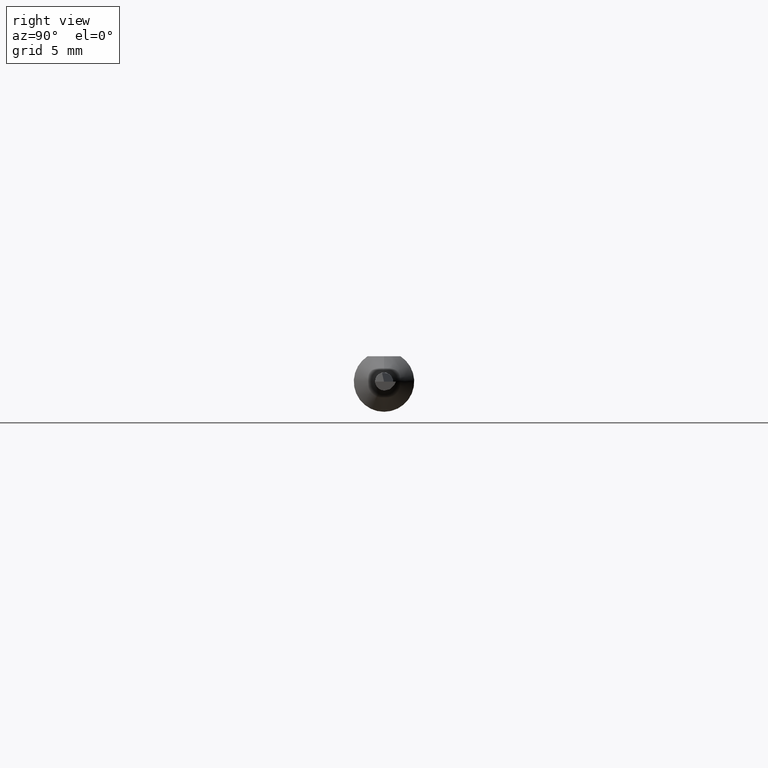
[diagram: clean part render]
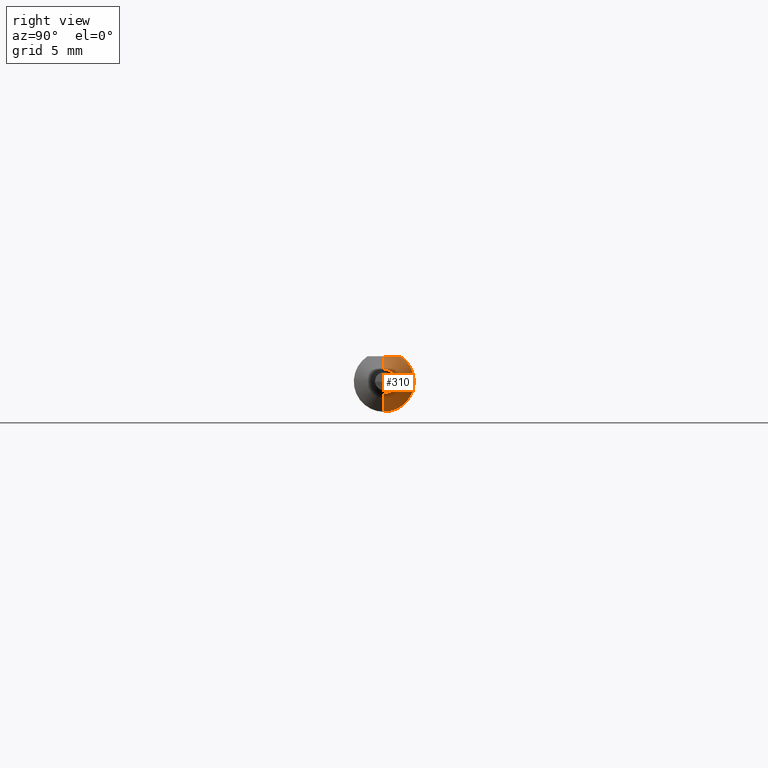
[diagram: same view with one face highlighted and labeled with its STEP entity id]
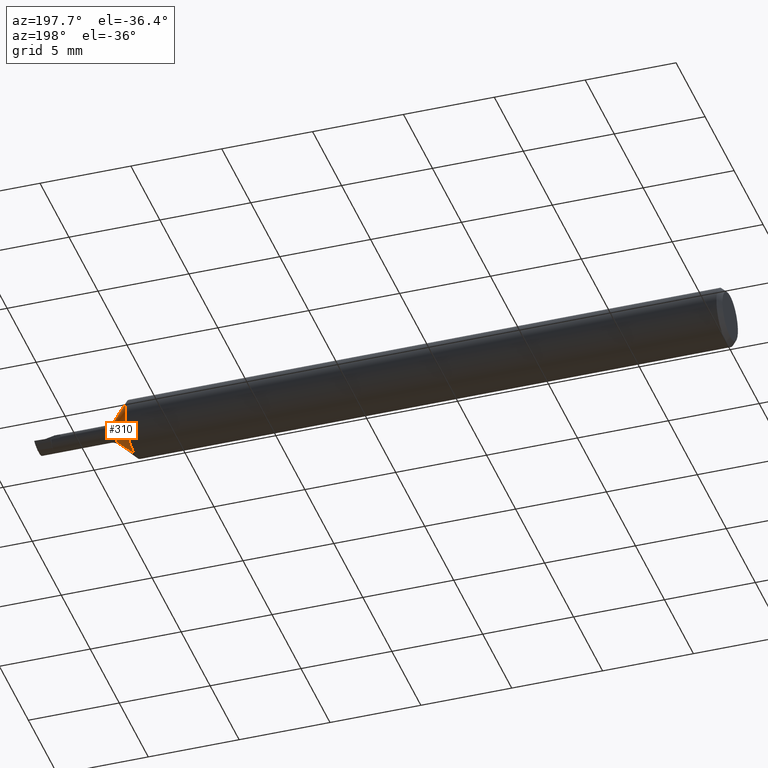
[diagram: same view with one face highlighted and labeled with its STEP entity id]
A machine part, right view. The second image highlights one B-rep face of the part: STEP entity #310.
A second angle (auxiliary view) of the same face is appended — the face is thin or edge-on in the first view.
In plain terms, the highlighted conical surface has half-angle 45 deg.
Its self-contained STEP definition (entity closure, byte-faithful):
#22 = EDGE_CURVE ( 'NONE', #146, #117, #435, .T. ) ;
#49 = AXIS2_PLACEMENT_3D ( 'NONE', #600, #308, #206 ) ;
#51 = CIRCLE ( 'NONE', #391, 0.02582233047033637499 ) ;
#55 = EDGE_CURVE ( 'NONE', #108, #463, #227, .T. ) ;
#77 = AXIS2_PLACEMENT_3D ( 'NONE', #577, #535, #294 ) ;
#101 = CARTESIAN_POINT ( 'NONE',  ( 1.327677669529663707, 3.162323435702260084E-18, -0.02582233047033637152 ) ) ;
#108 = VERTEX_POINT ( 'NONE', #101 ) ;
#117 = VERTEX_POINT ( 'NONE', #545 ) ;
#134 = VECTOR ( 'NONE', #504, 39.37007874015748143 ) ;
#146 = VERTEX_POINT ( 'NONE', #251 ) ;
#179 = CARTESIAN_POINT ( 'NONE',  ( 1.296488788636946277, 0.02320328458619742157, 0.05235000000000002152 ) ) ;
#187 = DIRECTION ( 'NONE',  ( 0.000000000000000000, 0.000000000000000000, 1.000000000000000000 ) ) ;
#191 = ORIENTED_EDGE ( 'NONE', *, *, #264, .T. ) ;
#201 = FACE_OUTER_BOUND ( 'NONE', #505, .T. ) ;
#206 = DIRECTION ( 'NONE',  ( 0.000000000000000000, 0.000000000000000000, 1.000000000000000000 ) ) ;
#213 = VERTEX_POINT ( 'NONE', #393 ) ;
#227 = LINE ( 'NONE', #395, #134 ) ;
#251 = CARTESIAN_POINT ( 'NONE',  ( 1.291150000000000242, 0.03386738844375220686, 0.05235000000000000070 ) ) ;
#264 = EDGE_CURVE ( 'NONE', #213, #108, #51, .T. ) ;
#292 = DIRECTION ( 'NONE',  ( -1.000000000000000000, -0.000000000000000000, -0.000000000000000000 ) ) ;
#294 = DIRECTION ( 'NONE',  ( 0.000000000000000000, 0.000000000000000000, 1.000000000000000000 ) ) ;
#303 = CARTESIAN_POINT ( 'NONE',  ( 1.327677669529663707, 0.000000000000000000, 0.02582233047033637499 ) ) ;
#308 = DIRECTION ( 'NONE',  ( -1.000000000000000000, -0.000000000000000000, -0.000000000000000000 ) ) ;
#310 = ADVANCED_FACE ( 'NONE', ( #201 ), #329, .T. ) ;
#329 = CONICAL_SURFACE ( 'NONE', #49, 0.02582233047033637499, 0.7853981633974507215 ) ;
#360 = CIRCLE ( 'NONE', #77, 0.06235000000000000264 ) ;
#377 = CARTESIAN_POINT ( 'NONE',  ( 1.301150000000000029, 0.005920815533600997868, 0.05235000000000002152 ) ) ;
#385 = CARTESIAN_POINT ( 'NONE',  ( 1.301150000000000029, -1.477724559795570125E-21, 0.05235000000000001458 ) ) ;
#391 = AXIS2_PLACEMENT_3D ( 'NONE', #627, #292, #187 ) ;
#392 = DIRECTION ( 'NONE',  ( -0.7071067811865457964, 0.000000000000000000, 0.7071067811865492381 ) ) ;
#393 = CARTESIAN_POINT ( 'NONE',  ( 1.327677669529663707, 0.000000000000000000, 0.02582233047033637152 ) ) ;
#395 = CARTESIAN_POINT ( 'NONE',  ( 1.327677669529663707, 3.162323435702260854E-18, -0.02582233047033637499 ) ) ;
#427 = CARTESIAN_POINT ( 'NONE',  ( 1.293992034642579059, 0.02863519109676607513, 0.05235000000000002152 ) ) ;
#435 = B_SPLINE_CURVE_WITH_KNOTS ( 'NONE', 3,
 ( #476, #427, #179, #585, #377, #385 ),
 .UNSPECIFIED., .F., .F.,
 ( 4, 2, 4 ),
 ( 0.002018861167849301565, 0.002467762199066080540, 0.002916663230282859516 ),
 .UNSPECIFIED. ) ;
#458 = VECTOR ( 'NONE', #392, 39.37007874015748143 ) ;
#463 = VERTEX_POINT ( 'NONE', #491 ) ;
#470 = ORIENTED_EDGE ( 'NONE', *, *, #22, .T. ) ;
#471 = EDGE_CURVE ( 'NONE', #146, #463, #360, .T. ) ;
#476 = CARTESIAN_POINT ( 'NONE',  ( 1.291150000000000242, 0.03386738844375220686, 0.05235000000000000070 ) ) ;
#491 = CARTESIAN_POINT ( 'NONE',  ( 1.291150000000000242, 7.635672792683746671E-18, -0.06235000000000000264 ) ) ;
#504 = DIRECTION ( 'NONE',  ( -0.7071067811865457964, 8.659560562354953812E-17, -0.7071067811865492381 ) ) ;
#505 = EDGE_LOOP ( 'NONE', ( #191, #529, #515, #470, #616 ) ) ;
#515 = ORIENTED_EDGE ( 'NONE', *, *, #471, .F. ) ;
#529 = ORIENTED_EDGE ( 'NONE', *, *, #55, .T. ) ;
#535 = DIRECTION ( 'NONE',  ( -1.000000000000000000, -0.000000000000000000, -0.000000000000000000 ) ) ;
#545 = CARTESIAN_POINT ( 'NONE',  ( 1.301150000000000029, -1.477724559795570125E-21, 0.05235000000000001458 ) ) ;
#548 = LINE ( 'NONE', #303, #458 ) ;
#577 = CARTESIAN_POINT ( 'NONE',  ( 1.291150000000000242, 0.000000000000000000, 0.000000000000000000 ) ) ;
#585 = CARTESIAN_POINT ( 'NONE',  ( 1.300078615661968584, 0.01191463382135339415, 0.05235000000000001458 ) ) ;
#600 = CARTESIAN_POINT ( 'NONE',  ( 1.327677669529663707, 0.000000000000000000, 0.000000000000000000 ) ) ;
#616 = ORIENTED_EDGE ( 'NONE', *, *, #632, .F. ) ;
#627 = CARTESIAN_POINT ( 'NONE',  ( 1.327677669529663707, 0.000000000000000000, 0.000000000000000000 ) ) ;
#632 = EDGE_CURVE ( 'NONE', #213, #117, #548, .T. ) ;